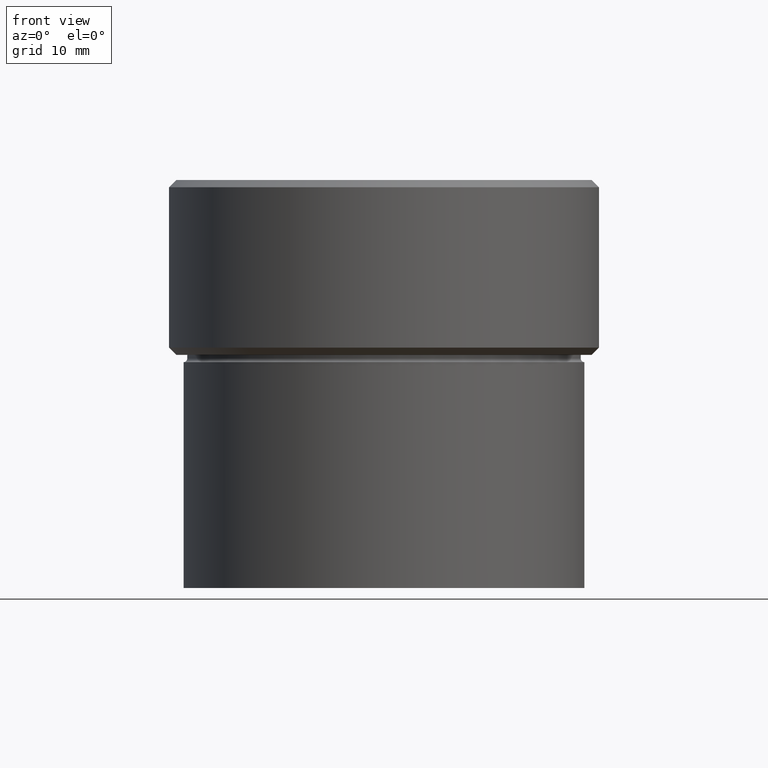
[diagram: clean part render]
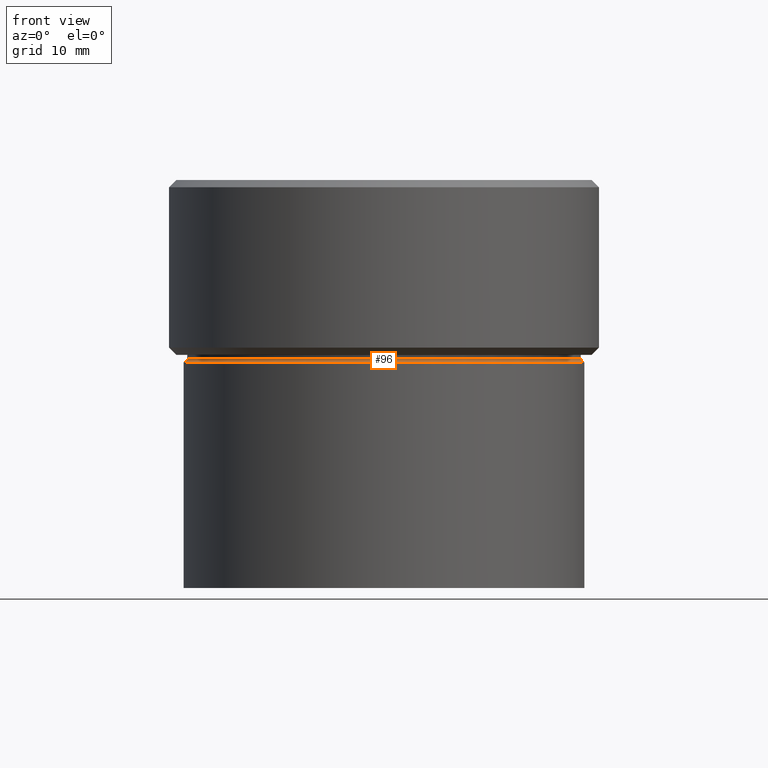
[diagram: same view with one face highlighted and labeled with its STEP entity id]
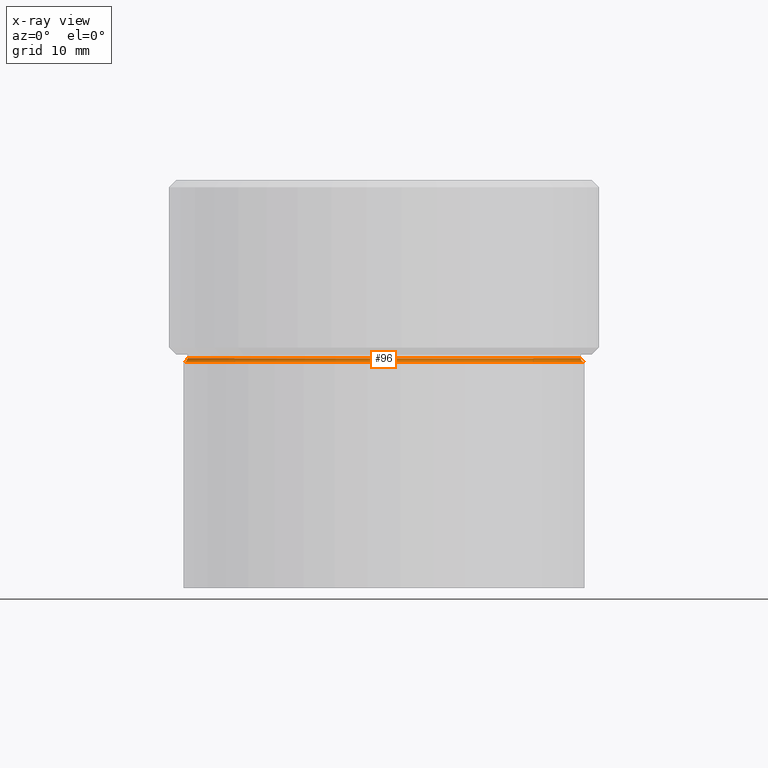
[diagram: x-ray of the same camera — body ghosted, the highlighted face saturated]
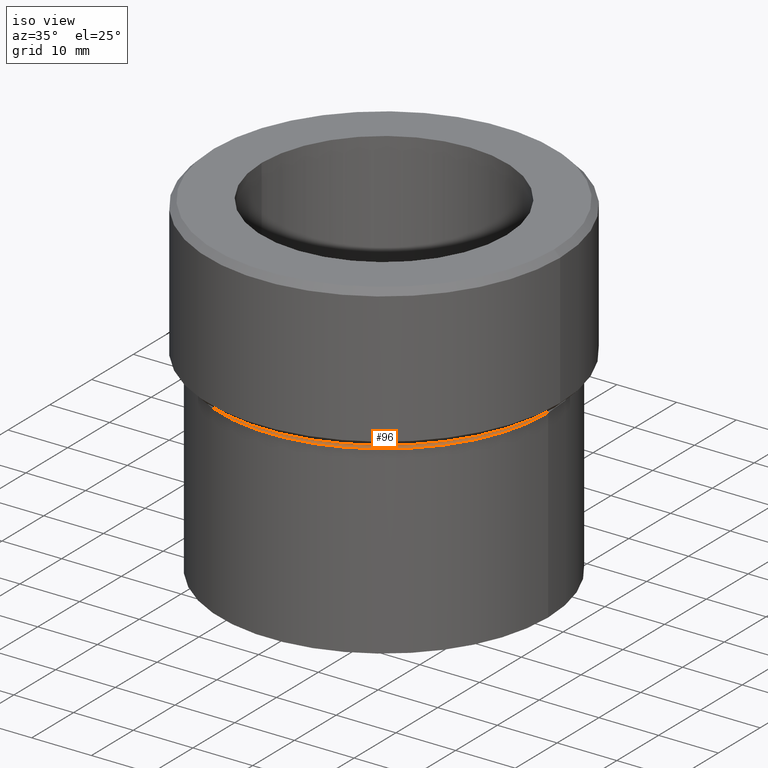
[diagram: same view with one face highlighted and labeled with its STEP entity id]
A machine part, front view. The second image highlights one B-rep face of the part: STEP entity #96.
The next image is the same camera in x-ray: the body ghosted, the highlighted face saturated — about 0% of this face is hidden behind the body in this view.
A second angle (iso view) of the same face is appended — the face is thin or edge-on in the first view.
In plain terms, the highlighted toroidal blend (fillet) surface has major radius 27.5 mm and minor (blend) radius 0.5 mm.
Its self-contained STEP definition (entity closure, byte-faithful):
#1 = DIRECTION ( 'NONE',  ( 1.000000000000000000, 0.000000000000000000, 0.000000000000000000 ) ) ;
#46 = EDGE_CURVE ( 'NONE', #358, #217, #417, .T. ) ;
#57 = CIRCLE ( 'NONE', #191, 27.50000000000000355 ) ;
#62 = EDGE_CURVE ( 'NONE', #443, #478, #187, .T. ) ;
#68 = CARTESIAN_POINT ( 'NONE',  ( -27.50000000000000355, 3.367778697655222096E-15, -24.99999999999999645 ) ) ;
#69 = ORIENTED_EDGE ( 'NONE', *, *, #62, .F. ) ;
#89 = DIRECTION ( 'NONE',  ( -1.000000000000000000, 1.224646799147349509E-16, 0.000000000000000000 ) ) ;
#92 = FACE_OUTER_BOUND ( 'NONE', #133, .T. ) ;
#96 = ADVANCED_FACE ( 'NONE', ( #92 ), #513, .F. ) ;
#98 = DIRECTION ( 'NONE',  ( -0.000000000000000000, -0.000000000000000000, 1.000000000000000000 ) ) ;
#109 = ORIENTED_EDGE ( 'NONE', *, *, #178, .F. ) ;
#132 = CARTESIAN_POINT ( 'NONE',  ( 27.00000000000000355, 0.000000000000000000, -24.49999999999999645 ) ) ;
#133 = EDGE_LOOP ( 'NONE', ( #109, #332, #455, #69 ) ) ;
#174 = DIRECTION ( 'NONE',  ( 1.224646799147353207E-16, 1.000000000000000000, 0.000000000000000000 ) ) ;
#178 = EDGE_CURVE ( 'NONE', #358, #443, #287, .T. ) ;
#184 = DIRECTION ( 'NONE',  ( 1.000000000000000000, 0.000000000000000000, 0.000000000000000000 ) ) ;
#187 = CIRCLE ( 'NONE', #444, 0.5000000000000004441 ) ;
#191 = AXIS2_PLACEMENT_3D ( 'NONE', #410, #529, #1 ) ;
#217 = VERTEX_POINT ( 'NONE', #68 ) ;
#227 = DIRECTION ( 'NONE',  ( -0.000000000000000000, -0.000000000000000000, 1.000000000000000000 ) ) ;
#232 = CARTESIAN_POINT ( 'NONE',  ( 27.50000000000000355, 0.000000000000000000, -24.49999999999999645 ) ) ;
#266 = CARTESIAN_POINT ( 'NONE',  ( -27.50000000000000355, 3.367778697655222096E-15, -24.49999999999999645 ) ) ;
#277 = AXIS2_PLACEMENT_3D ( 'NONE', #504, #98, #184 ) ;
#279 = CARTESIAN_POINT ( 'NONE',  ( -27.00000000000000355, 3.306546357697854128E-15, -24.49999999999999645 ) ) ;
#287 = CIRCLE ( 'NONE', #354, 27.00000000000000355 ) ;
#300 = CARTESIAN_POINT ( 'NONE',  ( 0.000000000000000000, 0.000000000000000000, -24.49999999999999645 ) ) ;
#323 = AXIS2_PLACEMENT_3D ( 'NONE', #266, #174, #89 ) ;
#332 = ORIENTED_EDGE ( 'NONE', *, *, #46, .T. ) ;
#337 = DIRECTION ( 'NONE',  ( 0.000000000000000000, 0.000000000000000000, -1.000000000000000000 ) ) ;
#340 = DIRECTION ( 'NONE',  ( 1.000000000000000000, 0.000000000000000000, 0.000000000000000000 ) ) ;
#354 = AXIS2_PLACEMENT_3D ( 'NONE', #300, #227, #340 ) ;
#358 = VERTEX_POINT ( 'NONE', #279 ) ;
#388 = DIRECTION ( 'NONE',  ( 0.000000000000000000, -1.000000000000000000, 0.000000000000000000 ) ) ;
#410 = CARTESIAN_POINT ( 'NONE',  ( 0.000000000000000000, 0.000000000000000000, -24.99999999999999645 ) ) ;
#417 = CIRCLE ( 'NONE', #323, 0.5000000000000004441 ) ;
#443 = VERTEX_POINT ( 'NONE', #132 ) ;
#444 = AXIS2_PLACEMENT_3D ( 'NONE', #232, #388, #337 ) ;
#447 = CARTESIAN_POINT ( 'NONE',  ( 27.50000000000000355, 0.000000000000000000, -24.99999999999999645 ) ) ;
#455 = ORIENTED_EDGE ( 'NONE', *, *, #488, .T. ) ;
#478 = VERTEX_POINT ( 'NONE', #447 ) ;
#488 = EDGE_CURVE ( 'NONE', #217, #478, #57, .T. ) ;
#504 = CARTESIAN_POINT ( 'NONE',  ( 0.000000000000000000, 0.000000000000000000, -24.49999999999999645 ) ) ;
#513 = TOROIDAL_SURFACE ( 'NONE', #277, 27.50000000000000355, 0.5000000000000000000 ) ;
#529 = DIRECTION ( 'NONE',  ( -0.000000000000000000, -0.000000000000000000, 1.000000000000000000 ) ) ;